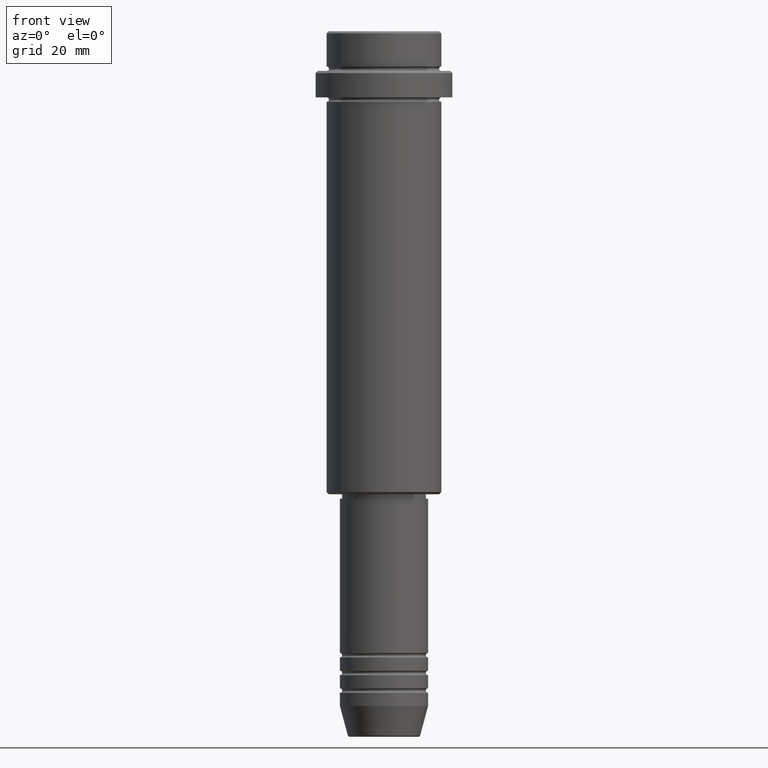
[diagram: clean part render]
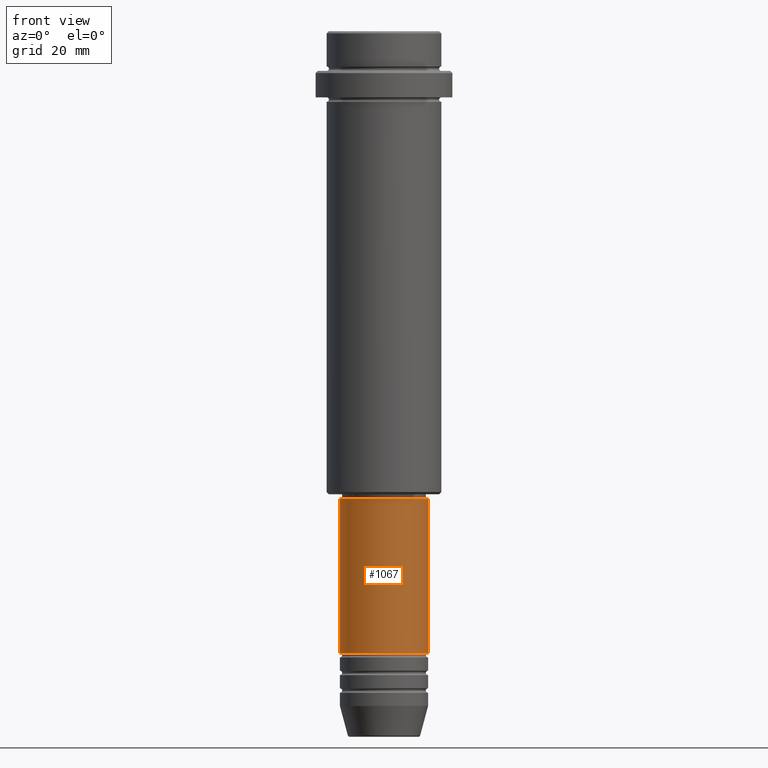
[diagram: same view with one face highlighted and labeled with its STEP entity id]
A machine part, front view. The second image highlights one B-rep face of the part: STEP entity #1067.
In plain terms, the highlighted cylindrical surface (partial cylindrical patch) has radius 10 mm, axis along (-0, -0, 1).
Its self-contained STEP definition (entity closure, byte-faithful):
#107 = CYLINDRICAL_SURFACE ( 'NONE', #764, 10.00000000000000178 ) ;
#149 = LINE ( 'NONE', #1353, #167 ) ;
#167 = VECTOR ( 'NONE', #367, 1000.000000000000000 ) ;
#179 = ORIENTED_EDGE ( 'NONE', *, *, #890, .F. ) ;
#229 = DIRECTION ( 'NONE',  ( -0.000000000000000000, -0.000000000000000000, 1.000000000000000000 ) ) ;
#249 = CIRCLE ( 'NONE', #274, 10.00000000000000000 ) ;
#272 = EDGE_CURVE ( 'NONE', #1049, #587, #1163, .T. ) ;
#274 = AXIS2_PLACEMENT_3D ( 'NONE', #614, #285, #1285 ) ;
#285 = DIRECTION ( 'NONE',  ( -0.000000000000000000, -0.000000000000000000, 1.000000000000000000 ) ) ;
#298 = DIRECTION ( 'NONE',  ( -0.000000000000000000, -0.000000000000000000, 1.000000000000000000 ) ) ;
#325 = DIRECTION ( 'NONE',  ( 1.000000000000000000, 0.000000000000000000, 0.000000000000000000 ) ) ;
#367 = DIRECTION ( 'NONE',  ( -0.000000000000000000, -0.000000000000000000, 1.000000000000000000 ) ) ;
#368 = EDGE_LOOP ( 'NONE', ( #179, #555, #751, #1059 ) ) ;
#378 = EDGE_CURVE ( 'NONE', #862, #587, #1180, .T. ) ;
#554 = AXIS2_PLACEMENT_3D ( 'NONE', #1242, #784, #680 ) ;
#555 = ORIENTED_EDGE ( 'NONE', *, *, #668, .T. ) ;
#587 = VERTEX_POINT ( 'NONE', #1262 ) ;
#614 = CARTESIAN_POINT ( 'NONE',  ( 0.000000000000000000, 0.000000000000000000, -140.9999999999999147 ) ) ;
#648 = VERTEX_POINT ( 'NONE', #1162 ) ;
#668 = EDGE_CURVE ( 'NONE', #648, #1049, #249, .T. ) ;
#680 = DIRECTION ( 'NONE',  ( 1.000000000000000000, 0.000000000000000000, 0.000000000000000000 ) ) ;
#751 = ORIENTED_EDGE ( 'NONE', *, *, #272, .T. ) ;
#762 = CARTESIAN_POINT ( 'NONE',  ( -10.00000000000000178, 1.224646799147353454E-15, -106.0000000000000142 ) ) ;
#764 = AXIS2_PLACEMENT_3D ( 'NONE', #1315, #229, #325 ) ;
#784 = DIRECTION ( 'NONE',  ( -0.000000000000000000, -0.000000000000000000, 1.000000000000000000 ) ) ;
#840 = CARTESIAN_POINT ( 'NONE',  ( 10.00000000000000178, 0.000000000000000000, 0.000000000000000000 ) ) ;
#850 = FACE_OUTER_BOUND ( 'NONE', #368, .T. ) ;
#862 = VERTEX_POINT ( 'NONE', #762 ) ;
#890 = EDGE_CURVE ( 'NONE', #648, #862, #149, .T. ) ;
#903 = VECTOR ( 'NONE', #298, 1000.000000000000000 ) ;
#1049 = VERTEX_POINT ( 'NONE', #1072 ) ;
#1059 = ORIENTED_EDGE ( 'NONE', *, *, #378, .F. ) ;
#1067 = ADVANCED_FACE ( 'NONE', ( #850 ), #107, .T. ) ;
#1072 = CARTESIAN_POINT ( 'NONE',  ( 10.00000000000000000, 0.000000000000000000, -140.9999999999999147 ) ) ;
#1162 = CARTESIAN_POINT ( 'NONE',  ( -10.00000000000000000, 1.224646799147353256E-15, -140.9999999999999147 ) ) ;
#1163 = LINE ( 'NONE', #840, #903 ) ;
#1180 = CIRCLE ( 'NONE', #554, 10.00000000000000178 ) ;
#1242 = CARTESIAN_POINT ( 'NONE',  ( 0.000000000000000000, 0.000000000000000000, -106.0000000000000142 ) ) ;
#1262 = CARTESIAN_POINT ( 'NONE',  ( 10.00000000000000178, 0.000000000000000000, -106.0000000000000142 ) ) ;
#1285 = DIRECTION ( 'NONE',  ( 1.000000000000000000, 0.000000000000000000, 0.000000000000000000 ) ) ;
#1315 = CARTESIAN_POINT ( 'NONE',  ( 0.000000000000000000, 0.000000000000000000, 0.000000000000000000 ) ) ;
#1353 = CARTESIAN_POINT ( 'NONE',  ( -10.00000000000000178, 1.224646799147353454E-15, 0.000000000000000000 ) ) ;